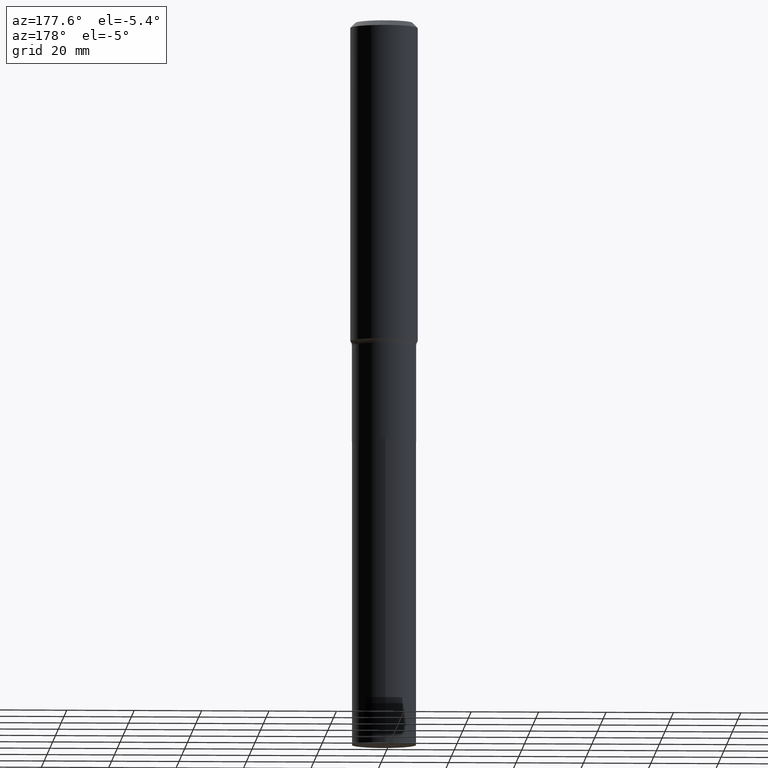
[diagram: clean part render]
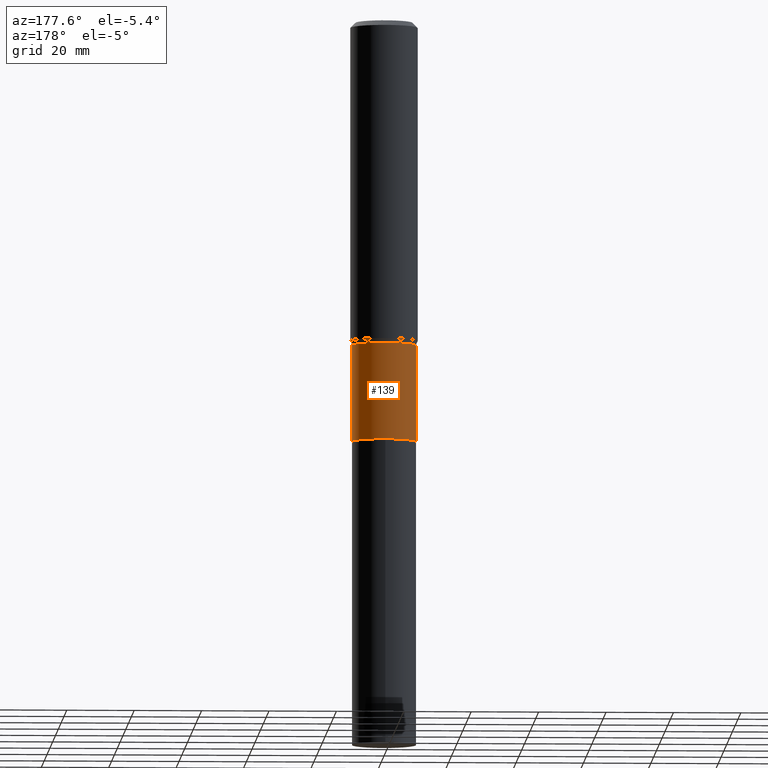
[diagram: same view with one face highlighted and labeled with its STEP entity id]
A machine part, auxiliary view. The second image highlights one B-rep face of the part: STEP entity #139.
In plain terms, the highlighted cylindrical surface (edge-blend (fillet) strip) has radius 9.525 mm, axis along (-0, 0, 1).
Its self-contained STEP definition (entity closure, byte-faithful):
#3 = DIRECTION ( 'NONE',  ( 1.000000000000000000, -6.982962677686265922E-15, 4.876176775795935793E-29 ) ) ;
#29 = CARTESIAN_POINT ( 'NONE',  ( 0.3750000000000001110, -1.975864204464724661E-14, -4.909100000000002240 ) ) ;
#52 = CARTESIAN_POINT ( 'NONE',  ( 9.249007571872807985E-29, -1.320513157163866504E-14, -3.782100000000001128 ) ) ;
#59 = VERTEX_POINT ( 'NONE', #85 ) ;
#80 = AXIS2_PLACEMENT_3D ( 'NONE', #405, #333, #3 ) ;
#85 = CARTESIAN_POINT ( 'NONE',  ( 0.3749999999999999445, -1.582374257577101506E-14, -3.782100000000001128 ) ) ;
#95 = ORIENTED_EDGE ( 'NONE', *, *, #307, .F. ) ;
#104 = ORIENTED_EDGE ( 'NONE', *, *, #183, .T. ) ;
#124 = LINE ( 'NONE', #271, #188 ) ;
#131 = ORIENTED_EDGE ( 'NONE', *, *, #166, .T. ) ;
#133 = VERTEX_POINT ( 'NONE', #377 ) ;
#139 = ADVANCED_FACE ( 'NONE', ( #155 ), #304, .T. ) ;
#149 = AXIS2_PLACEMENT_3D ( 'NONE', #52, #193, #197 ) ;
#155 = FACE_OUTER_BOUND ( 'NONE', #385, .T. ) ;
#161 = LINE ( 'NONE', #313, #269 ) ;
#162 = DIRECTION ( 'NONE',  ( -2.445468806185136877E-29, 3.491481338843145188E-15, 1.000000000000000000 ) ) ;
#166 = EDGE_CURVE ( 'NONE', #395, #461, #366, .T. ) ;
#183 = EDGE_CURVE ( 'NONE', #461, #133, #124, .T. ) ;
#188 = VECTOR ( 'NONE', #419, 39.37007874015748143 ) ;
#193 = DIRECTION ( 'NONE',  ( -2.445468806185136597E-29, 3.491481338843145583E-15, 1.000000000000000000 ) ) ;
#197 = DIRECTION ( 'NONE',  ( 1.000000000000000000, -6.982962677686269077E-15, 0.000000000000000000 ) ) ;
#238 = ORIENTED_EDGE ( 'NONE', *, *, #331, .F. ) ;
#253 = CARTESIAN_POINT ( 'NONE',  ( -0.3750000000000001110, -1.250804604697640197E-14, -4.909100000000002240 ) ) ;
#269 = VECTOR ( 'NONE', #162, 39.37007874015748143 ) ;
#271 = CARTESIAN_POINT ( 'NONE',  ( -0.3750000000000000555, 2.664535259100376091E-15, -1.844600658845589598E-29 ) ) ;
#304 = CYLINDRICAL_SURFACE ( 'NONE', #80, 0.3750000000000000555 ) ;
#307 = EDGE_CURVE ( 'NONE', #59, #133, #437, .T. ) ;
#313 = CARTESIAN_POINT ( 'NONE',  ( 0.3750000000000000555, -2.618611004132350016E-15, 1.828566290923476203E-29 ) ) ;
#331 = EDGE_CURVE ( 'NONE', #395, #59, #161, .T. ) ;
#333 = DIRECTION ( 'NONE',  ( -2.445468806185136597E-29, 3.491481338843145583E-15, 1.000000000000000000 ) ) ;
#340 = DIRECTION ( 'NONE',  ( -2.445468806185136597E-29, 3.491481338843145583E-15, 1.000000000000000000 ) ) ;
#347 = DIRECTION ( 'NONE',  ( 1.000000000000000000, -6.982962677686270655E-15, 0.000000000000000000 ) ) ;
#357 = AXIS2_PLACEMENT_3D ( 'NONE', #439, #340, #347 ) ;
#366 = CIRCLE ( 'NONE', #357, 0.3750000000000001110 ) ;
#377 = CARTESIAN_POINT ( 'NONE',  ( -0.3749999999999999445, -1.250804604697640197E-14, -3.782100000000001128 ) ) ;
#385 = EDGE_LOOP ( 'NONE', ( #131, #104, #95, #238 ) ) ;
#395 = VERTEX_POINT ( 'NONE', #29 ) ;
#405 = CARTESIAN_POINT ( 'NONE',  ( 0.000000000000000000, 0.000000000000000000, 0.000000000000000000 ) ) ;
#419 = DIRECTION ( 'NONE',  ( -2.445468806185136877E-29, 3.491481338843145188E-15, 1.000000000000000000 ) ) ;
#437 = CIRCLE ( 'NONE', #149, 0.3749999999999999445 ) ;
#439 = CARTESIAN_POINT ( 'NONE',  ( 1.200505091644346010E-28, -1.714003104051489344E-14, -4.909100000000002240 ) ) ;
#461 = VERTEX_POINT ( 'NONE', #253 ) ;